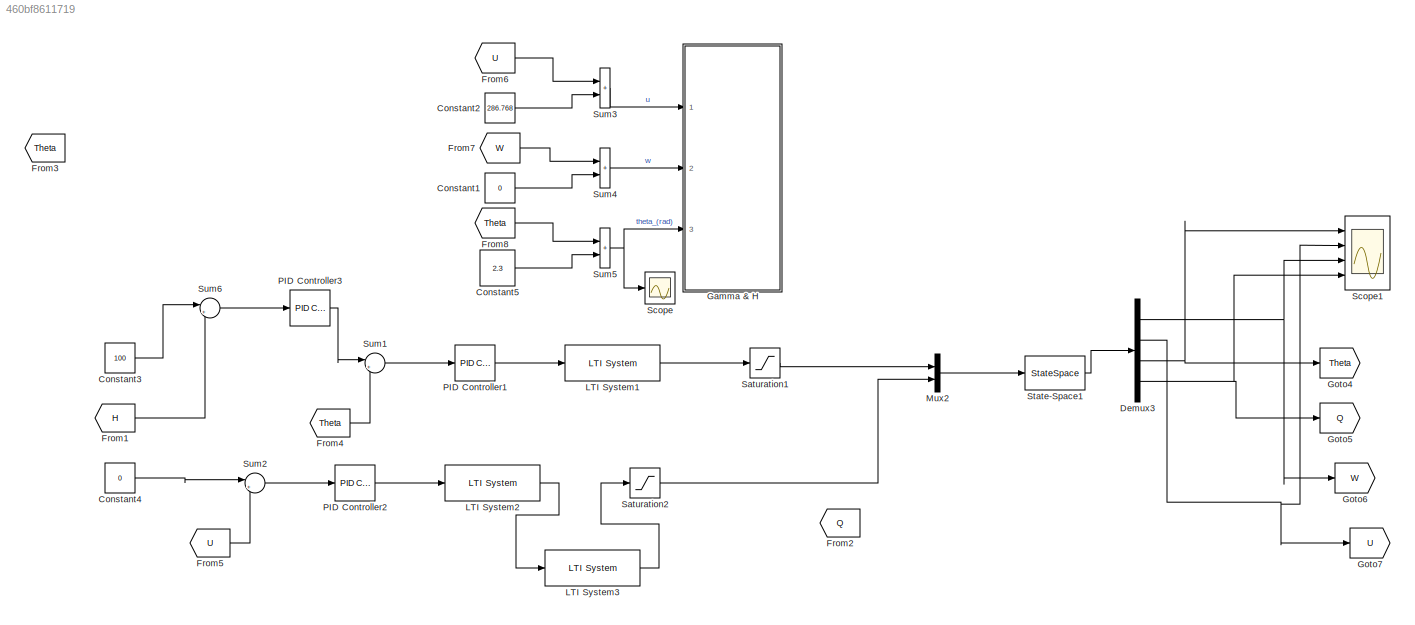
MODEL slx_460bf8611719
KIND model
CONFIG AbsTol = auto
CONFIG EnableMultiTasking = off
CONFIG FixedStep = auto
CONFIG MaxStep = 0.2
CONFIG MinStep = auto
CONFIG RelTol = 1e-3
CONFIG SampleTimeConstraint = Unconstrained
CONFIG SolverName = ode4
CONFIG StartTime = 0.0
CONFIG StopTime = 100
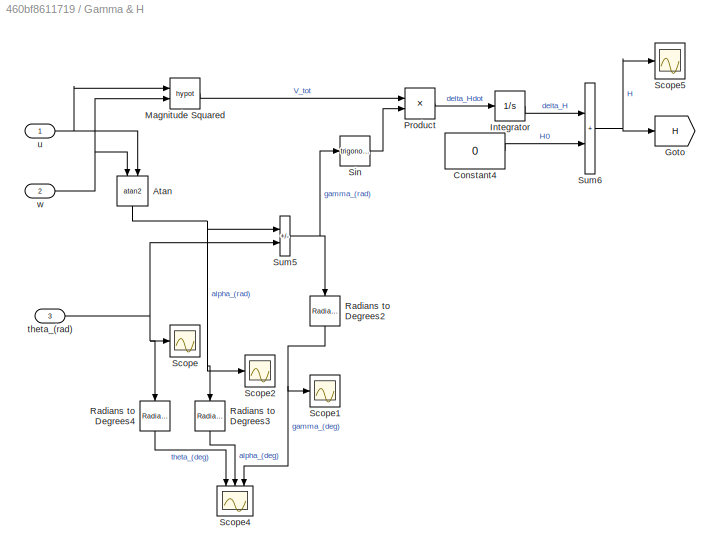
BLOCK [SubSystem]  Gamma & H
  Ports = [3]
  RequestExecContextInheritance = off
BLOCK [Trigonometry]  Gamma & H/Atan
  NameLocation = left
  Operator = atan2
  Ports = [2, 1]
BLOCK [Constant]  Gamma & H/Constant4
  Value = 0
BLOCK [Goto]  Gamma & H/Goto
  GotoTag = H
  TagVisibility = global
BLOCK [Integrator]  Gamma & H/Integrator
  Ports = [1, 1]
BLOCK [Math]  Gamma & H/Magnitude Squared
  Operator = hypot
  Ports = [2, 1]
  SignedPower = on
BLOCK [Product]  Gamma & H/Product
  Ports = [2, 1]
BLOCK [Reference]  Gamma & H/Radians to Degrees2  REF=simulink_extras/Transformations/Radians
to Degrees
  NameLocation = left
  Ports = [1, 1]
  SourceBlock = simulink_extras/Transformations/Radians\nto Degrees
  SourceProductBaseCode = SL
  SourceType = RadiansToDegrees
BLOCK [Reference]  Gamma & H/Radians to Degrees3  REF=simulink_extras/Transformations/Radians
to Degrees
  NameLocation = left
  Ports = [1, 1]
  SourceBlock = simulink_extras/Transformations/Radians\nto Degrees
  SourceProductBaseCode = SL
  SourceType = RadiansToDegrees
BLOCK [Reference]  Gamma & H/Radians to Degrees4  REF=simulink_extras/Transformations/Radians
to Degrees
  NameLocation = left
  Ports = [1, 1]
  SourceBlock = simulink_extras/Transformations/Radians\nto Degrees
  SourceProductBaseCode = SL
  SourceType = RadiansToDegrees
BLOCK [Scope]  Gamma & H/Scope
  Floating = off
  NumInputPorts = 1
  Ports = [1]
  ScopeSpecificationString = Simulink.scopes.TimeScopeBlockCfg('CurrentConfiguration', extmgr.ConfigurationSet(extmgr.Configuration('Core','General UI',true),extmgr.Configuration('Core','Source UI',true),extmgr.Configuration('Sources','WiredSimulink',true,'DataLoggingVariableName','ScopeData1'),extmgr.Configuration('Visuals','Time Domain',true,'SerializedDisplays',{struct('MinYLimReal','0.56268','MaxYLimReal','2.49304','YLabe...<+1436ch>
BLOCK [Scope]  Gamma & H/Scope1
  Floating = off
  NumInputPorts = 1
  Ports = [1]
  ScopeSpecificationString = Simulink.scopes.TimeScopeBlockCfg('CurrentConfiguration', extmgr.ConfigurationSet(extmgr.Configuration('Core','General UI',true),extmgr.Configuration('Core','Source UI',true),extmgr.Configuration('Sources','WiredSimulink',true,'DataLoggingVariableName','ScopeData3'),extmgr.Configuration('Visuals','Time Domain',true,'SerializedDisplays',{struct('MinYLimReal','29.29681','MaxYLimReal','143.16735','YL...<+1415ch>
BLOCK [Scope]  Gamma & H/Scope2
  Floating = off
  NumInputPorts = 1
  Ports = [1]
  ScopeSpecificationString = Simulink.scopes.TimeScopeBlockCfg('CurrentConfiguration', extmgr.ConfigurationSet(extmgr.Configuration('Core','General UI',true),extmgr.Configuration('Core','Source UI',true),extmgr.Configuration('Sources','WiredSimulink',true,'DataLoggingVariableName','ScopeData4'),extmgr.Configuration('Visuals','Time Domain',true,'SerializedDisplays',{struct('MinYLimReal','-0.00574','MaxYLimReal','0.05166','YLab...<+1405ch>
BLOCK [Scope]  Gamma & H/Scope4
  Floating = off
  NameLocation = left
  NumInputPorts = 3
  Ports = [3]
  ScopeSpecificationString = Simulink.scopes.TimeScopeBlockCfg('CurrentConfiguration', extmgr.ConfigurationSet(extmgr.Configuration('Core','General UI',true,'FigureColor',[1 1 1]),extmgr.Configuration('Core','Source UI',true),extmgr.Configuration('Sources','WiredSimulink',true,'DataLoggingVariableName','ScopeData4'),extmgr.Configuration('Visuals','Time Domain',true,'SerializedDisplays',{struct('MinYLimReal','-5870371966197339...<+6582ch>
BLOCK [Scope]  Gamma & H/Scope5
  Floating = off
  NumInputPorts = 1
  Ports = [1]
  ScopeSpecificationString = Simulink.scopes.TimeScopeBlockCfg('CurrentConfiguration', extmgr.ConfigurationSet(extmgr.Configuration('Core','General UI',true,'FigureColor',[1 1 1]),extmgr.Configuration('Core','Source UI',true),extmgr.Configuration('Sources','WiredSimulink',true,'DataLoggingVariableName','ScopeData5'),extmgr.Configuration('Visuals','Time Domain',true,'SerializedDisplays',{struct('MinYLimReal','-324.91604','MaxY...<+1833ch>
BLOCK [Trigonometry]  Gamma & H/Sin
  Ports = [1, 1]
BLOCK [Sum]  Gamma & H/Sum5
  IconShape = rectangular
  Inputs = -+
  Ports = [2, 1]
BLOCK [Sum]  Gamma & H/Sum6
  IconShape = rectangular
  Ports = [2, 1]
BLOCK [Inport]  Gamma & H/theta_(rad)
  Port = 3
BLOCK [Inport]  Gamma & H/u
BLOCK [Inport]  Gamma & H/w
  Port = 2
BLOCK [Constant] Constant1
  Value = 0
BLOCK [Constant] Constant2
  Value = 286.768
BLOCK [Constant] Constant3
  Value = 100
BLOCK [Constant] Constant4
  Value = 0
BLOCK [Constant] Constant5
  Value = 2.3
BLOCK [Demux] Demux3
  Ports = [1, 4]
BLOCK [From] From1
  GotoTag = H
  TagVisibility = global
BLOCK [From] From2
  GotoTag = Q
BLOCK [From] From3
  GotoTag = Theta
BLOCK [From] From4
  GotoTag = Theta
BLOCK [From] From5
  GotoTag = U
BLOCK [From] From6
  GotoTag = U
BLOCK [From] From7
  GotoTag = W
BLOCK [From] From8
  GotoTag = Theta
BLOCK [Goto] Goto4
  GotoTag = Theta
BLOCK [Goto] Goto5
  GotoTag = Q
BLOCK [Goto] Goto6
  GotoTag = W
BLOCK [Goto] Goto7
  GotoTag = U
BLOCK [Reference] LTI System1  REF=cstblocks/LTI System
  Ports = [1, 1]
  SourceBlock = cstblocks/LTI System
  SourceProductBaseCode = CT
  SourceType = LTI Block
BLOCK [Reference] LTI System2  REF=cstblocks/LTI System
  Ports = [1, 1]
  SourceBlock = cstblocks/LTI System
  SourceProductBaseCode = CT
  SourceType = LTI Block
BLOCK [Reference] LTI System3  REF=cstblocks/LTI System
  Ports = [1, 1]
  SourceBlock = cstblocks/LTI System
  SourceProductBaseCode = CT
  SourceType = LTI Block
BLOCK [Mux] Mux2
  DisplayOption = bar
  Inputs = 2
  Ports = [2, 1]
BLOCK [Reference] PID Controller1  REF=slpidlib/PID Controller
  Ports = [1, 1]
  SourceBlock = slpidlib/PID Controller
  SourceProductBaseCode = SL
  SourceType = PID 1dof
BLOCK [Reference] PID Controller2  REF=slpidlib/PID Controller
  Commented = through
  Ports = [1, 1]
  SourceBlock = slpidlib/PID Controller
  SourceProductBaseCode = SL
  SourceType = PID 1dof
BLOCK [Reference] PID Controller3  REF=slpidlib/PID Controller
  Commented = through
  Ports = [1, 1]
  SourceBlock = slpidlib/PID Controller
  SourceProductBaseCode = SL
  SourceType = PID 1dof
BLOCK [Saturate] Saturation1
  LowerLimit = -30*pi/180
  UpperLimit = 30*pi/180
  ZeroCross = off
BLOCK [Saturate] Saturation2
  LowerLimit = -3*3700
  UpperLimit = 3700
  ZeroCross = off
BLOCK [Scope] Scope
  Floating = off
  NumInputPorts = 1
  Ports = [1]
  ScopeSpecificationString = Simulink.scopes.TimeScopeBlockCfg('CurrentConfiguration', extmgr.ConfigurationSet(extmgr.Configuration('Core','General UI',true),extmgr.Configuration('Core','Source UI',true),extmgr.Configuration('Sources','WiredSimulink',true,'DataLoggingVariableName','ScopeData5'),extmgr.Configuration('Visuals','Time Domain',true,'SerializedDisplays',{struct('MinYLimReal','0.56268','MaxYLimReal','2.49304','YLabe...<+1403ch>
BLOCK [Scope] Scope1
  Floating = off
  NumInputPorts = 4
  Ports = [4]
  ScopeSpecificationString = Simulink.scopes.TimeScopeBlockCfg('CurrentConfiguration', extmgr.ConfigurationSet(extmgr.Configuration('Core','General UI',true),extmgr.Configuration('Core','Source UI',true),extmgr.Configuration('Sources','WiredSimulink',true,'DataLoggingVariableName','ScopeData2'),extmgr.Configuration('Visuals','Time Domain',true,'SerializedDisplays',{struct('MinYLimReal','-1.73732','MaxYLimReal','0.19304','YLab...<+3461ch>
BLOCK [StateSpace] State-Space1
  A = A_long_full1
  B = B_long_full
  C = C_long_full
  D = [0,0;0,0;0,0;0,0;]
  InitialCondition = 0
  ParameterTunability = Unconstrained
  Ports = [1, 1]
BLOCK [Sum] Sum1
  Inputs = |+-
  Ports = [2, 1]
BLOCK [Sum] Sum2
  Inputs = |+-
  Ports = [2, 1]
BLOCK [Sum] Sum3
  IconShape = rectangular
  Ports = [2, 1]
BLOCK [Sum] Sum4
  IconShape = rectangular
  Ports = [2, 1]
BLOCK [Sum] Sum5
  IconShape = rectangular
  Ports = [2, 1]
BLOCK [Sum] Sum6
  Inputs = |+-
  Ports = [2, 1]
NET  Gamma & H/Atan:1 ->  Gamma & H/Radians to Degrees3:1,  Gamma & H/Scope2:1,  Gamma & H/Sum5:1
LINE  Gamma & H/Constant4:1 ->  Gamma & H/Sum6:2
LINE  Gamma & H/Integrator:1 ->  Gamma & H/Sum6:1
LINE  Gamma & H/Magnitude Squared:1 ->  Gamma & H/Product:1
LINE  Gamma & H/Product:1 ->  Gamma & H/Integrator:1
NET  Gamma & H/Radians to Degrees2:1 ->  Gamma & H/Scope1:1,  Gamma & H/Scope4:3
LINE  Gamma & H/Radians to Degrees3:1 ->  Gamma & H/Scope4:2
LINE  Gamma & H/Radians to Degrees4:1 ->  Gamma & H/Scope4:1
LINE  Gamma & H/Sin:1 ->  Gamma & H/Product:2
NET  Gamma & H/Sum5:1 ->  Gamma & H/Radians to Degrees2:1,  Gamma & H/Sin:1
NET  Gamma & H/Sum6:1 ->  Gamma & H/Goto:1,  Gamma & H/Scope5:1
NET  Gamma & H/theta_(rad):1 ->  Gamma & H/Radians to Degrees4:1,  Gamma & H/Scope:1,  Gamma & H/Sum5:2
NET  Gamma & H/u:1 ->  Gamma & H/Atan:2,  Gamma & H/Magnitude Squared:1
NET  Gamma & H/w:1 ->  Gamma & H/Atan:1,  Gamma & H/Magnitude Squared:2
LINE Constant1:1 -> Sum4:2
LINE Constant2:1 -> Sum3:2
LINE Constant3:1 -> Sum6:1
LINE Constant4:1 -> Sum2:1
LINE Constant5:1 -> Sum5:2
NET Demux3:1 -> Goto6:1, Scope1:3
NET Demux3:2 -> Goto7:1, Scope1:2
NET Demux3:3 -> Goto4:1, Scope1:1
NET Demux3:4 -> Goto5:1, Scope1:4
LINE From1:1 -> Sum6:2
LINE From4:1 -> Sum1:2
LINE From5:1 -> Sum2:2
LINE From6:1 -> Sum3:1
LINE From7:1 -> Sum4:1
LINE From8:1 -> Sum5:1
LINE LTI System1:1 -> Saturation1:1
LINE LTI System2:1 -> LTI System3:1
LINE LTI System3:1 -> Saturation2:1
LINE Mux2:1 -> State-Space1:1
LINE PID Controller1:1 -> LTI System1:1
LINE PID Controller2:1 -> LTI System2:1
LINE PID Controller3:1 -> Sum1:1
LINE Saturation1:1 -> Mux2:1
LINE Saturation2:1 -> Mux2:2
LINE State-Space1:1 -> Demux3:1
LINE Sum1:1 -> PID Controller1:1
LINE Sum2:1 -> PID Controller2:1
LINE Sum3:1 ->  Gamma & H:1
LINE Sum4:1 ->  Gamma & H:2
NET Sum5:1 ->  Gamma & H:3, Scope:1
LINE Sum6:1 -> PID Controller3:1
note: NET lines group one-source signal fan-out (src -> all destinations, sorted); 1:1 wires keep LINE
